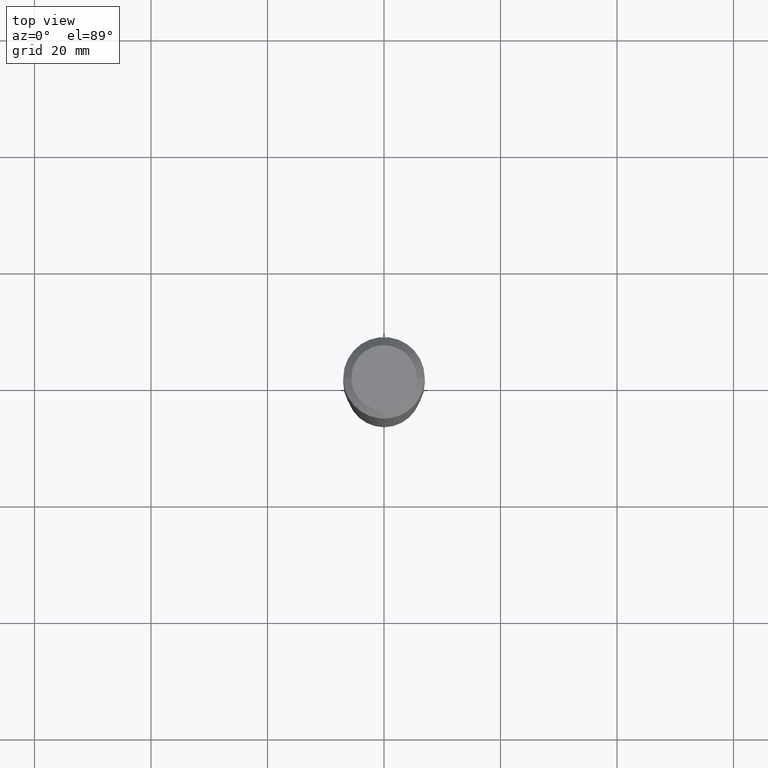
[diagram: clean part render]
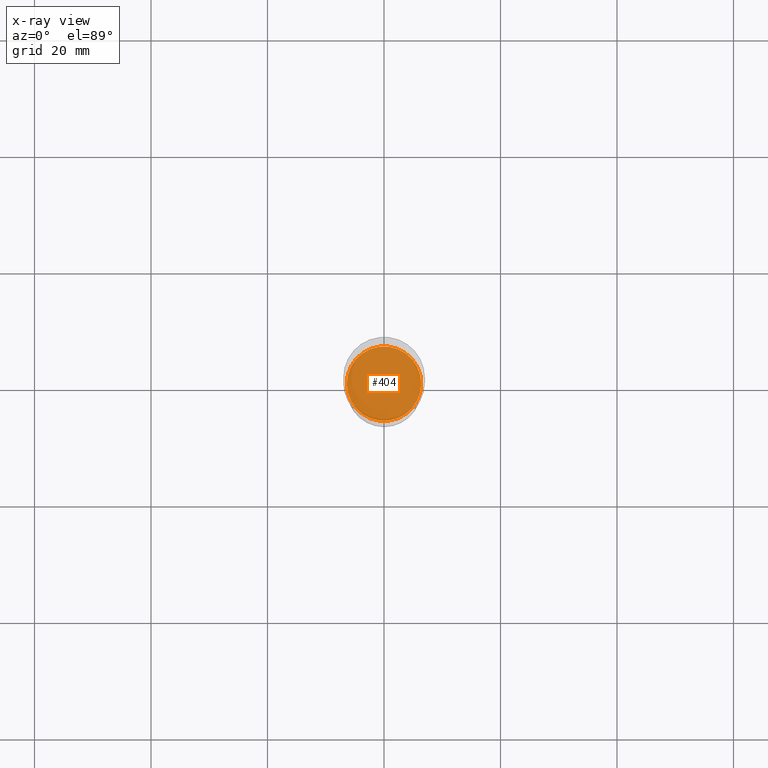
[diagram: x-ray — body ghosted, one internal face saturated and labeled with its STEP entity id]
A machine part, top view, then the same camera in x-ray: the body is ghosted and one INTERNAL B-rep face — a face not visible from any outside direction — is saturated and labeled: STEP entity #404.
In plain terms, the highlighted planar face has unit normal (-0, 0, 1).
Its self-contained STEP definition (entity closure, byte-faithful):
#34 = DIRECTION ( 'NONE',  ( -2.438088387897960049E-29, 3.491481338843145188E-15, 1.000000000000000000 ) ) ;
#42 = EDGE_LOOP ( 'NONE', ( #310, #71 ) ) ;
#51 = CARTESIAN_POINT ( 'NONE',  ( 5.757367210401667077E-29, -8.219994516038417503E-15, -2.354300000000000281 ) ) ;
#59 = DIRECTION ( 'NONE',  ( 1.000000000000000000, -6.982962677686263555E-15, 0.000000000000000000 ) ) ;
#70 = CARTESIAN_POINT ( 'NONE',  ( 5.757367210401667077E-29, -8.219994516038417503E-15, -2.354300000000000281 ) ) ;
#71 = ORIENTED_EDGE ( 'NONE', *, *, #150, .F. ) ;
#78 = AXIS2_PLACEMENT_3D ( 'NONE', #70, #34, #336 ) ;
#92 = VERTEX_POINT ( 'NONE', #203 ) ;
#115 = VERTEX_POINT ( 'NONE', #391 ) ;
#150 = EDGE_CURVE ( 'NONE', #92, #115, #339, .T. ) ;
#197 = DIRECTION ( 'NONE',  ( 1.000000000000000000, -6.982962677686263555E-15, 0.000000000000000000 ) ) ;
#203 = CARTESIAN_POINT ( 'NONE',  ( -0.2514500000000000068, -6.430685579795535520E-15, -2.354300000000000281 ) ) ;
#241 = DIRECTION ( 'NONE',  ( -2.445468806185136597E-29, 3.491481338843145583E-15, 1.000000000000000000 ) ) ;
#262 = FACE_OUTER_BOUND ( 'NONE', #42, .T. ) ;
#288 = AXIS2_PLACEMENT_3D ( 'NONE', #51, #241, #197 ) ;
#300 = CIRCLE ( 'NONE', #288, 0.2514500000000000068 ) ;
#310 = ORIENTED_EDGE ( 'NONE', *, *, #442, .F. ) ;
#336 = DIRECTION ( 'NONE',  ( 1.000000000000000000, -6.982962677686265922E-15, 4.876176775795935793E-29 ) ) ;
#339 = CIRCLE ( 'NONE', #401, 0.2514500000000000068 ) ;
#391 = CARTESIAN_POINT ( 'NONE',  ( 0.2514500000000000068, -9.975860481342629691E-15, -2.354300000000000281 ) ) ;
#401 = AXIS2_PLACEMENT_3D ( 'NONE', #441, #477, #59 ) ;
#404 = ADVANCED_FACE ( 'NONE', ( #262 ), #410, .F. ) ;
#410 = PLANE ( 'NONE',  #78 ) ;
#441 = CARTESIAN_POINT ( 'NONE',  ( 5.757367210401667077E-29, -8.219994516038417503E-15, -2.354300000000000281 ) ) ;
#442 = EDGE_CURVE ( 'NONE', #115, #92, #300, .T. ) ;
#477 = DIRECTION ( 'NONE',  ( -2.445468806185136597E-29, 3.491481338843145583E-15, 1.000000000000000000 ) ) ;